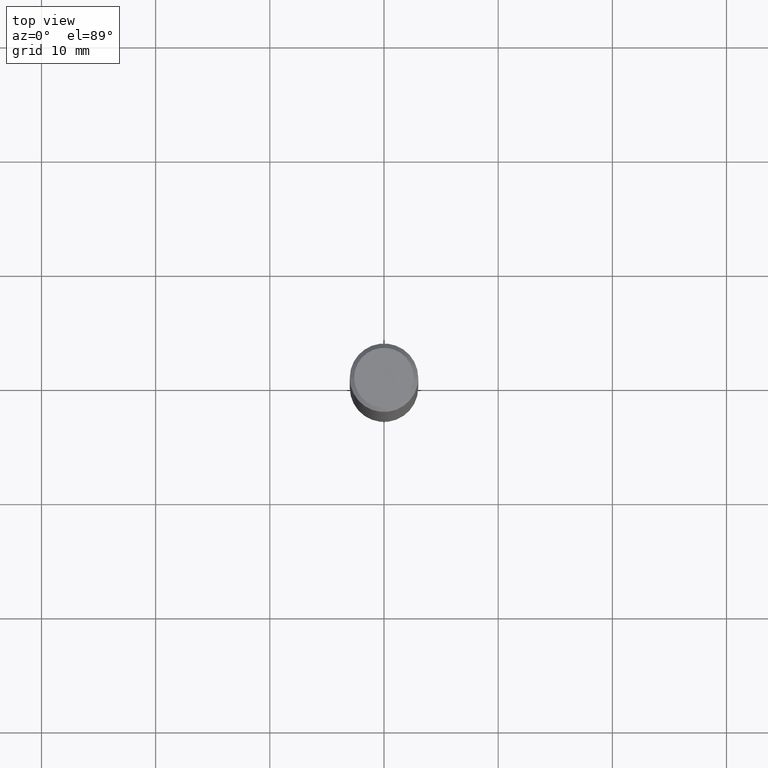
[diagram: clean part render]
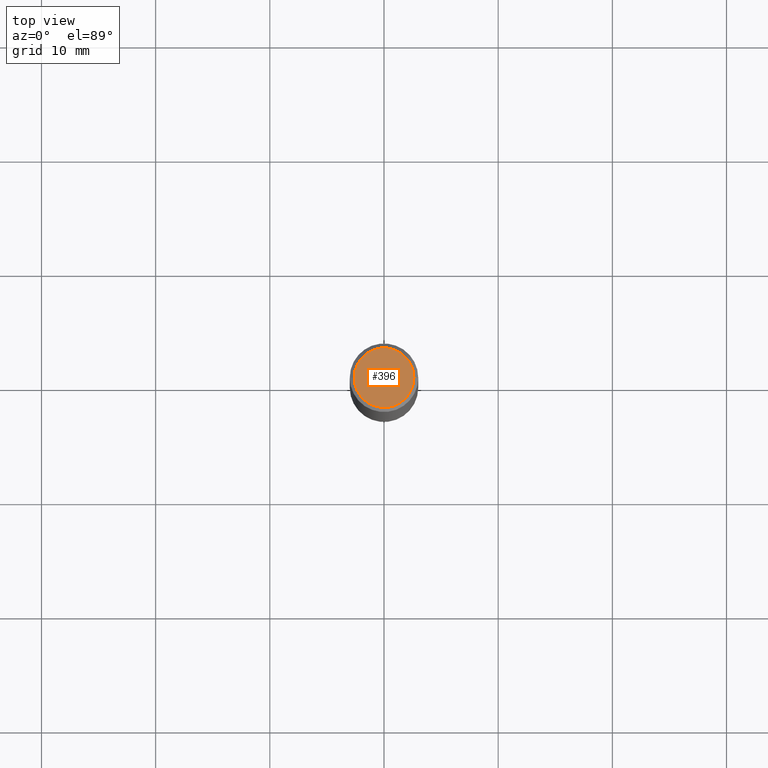
[diagram: same view with one face highlighted and labeled with its STEP entity id]
A machine part, top view. The second image highlights one B-rep face of the part: STEP entity #396.
In plain terms, the highlighted planar face has unit normal (0, -0, -1).
Its self-contained STEP definition (entity closure, byte-faithful):
#20 = DIRECTION ( 'NONE',  ( 1.000000000000000000, -6.982962677686265922E-15, 4.876176775795935232E-29 ) ) ;
#27 = AXIS2_PLACEMENT_3D ( 'NONE', #83, #406, #435 ) ;
#31 = ORIENTED_EDGE ( 'NONE', *, *, #115, .T. ) ;
#52 = CARTESIAN_POINT ( 'NONE',  ( 0.000000000000000000, 0.000000000000000000, 0.000000000000000000 ) ) ;
#83 = CARTESIAN_POINT ( 'NONE',  ( 7.199434520694541042E-16, 0.1031000000000000111, -3.599717260347282847E-16 ) ) ;
#96 = DIRECTION ( 'NONE',  ( -2.445468806185136597E-29, 3.491481338843145583E-15, 1.000000000000000000 ) ) ;
#107 = EDGE_LOOP ( 'NONE', ( #31, #195 ) ) ;
#115 = EDGE_CURVE ( 'NONE', #379, #472, #436, .T. ) ;
#185 = CIRCLE ( 'NONE', #471, 0.1031000000000000111 ) ;
#195 = ORIENTED_EDGE ( 'NONE', *, *, #308, .T. ) ;
#217 = DIRECTION ( 'NONE',  ( 1.000000000000000000, -6.982962677686265922E-15, 4.876176775795935232E-29 ) ) ;
#224 = AXIS2_PLACEMENT_3D ( 'NONE', #52, #96, #217 ) ;
#243 = PLANE ( 'NONE',  #27 ) ;
#245 = CARTESIAN_POINT ( 'NONE',  ( -0.1031000000000000111, 7.461295621107775452E-16, -5.126375781645864005E-30 ) ) ;
#273 = DIRECTION ( 'NONE',  ( -2.445468806185136597E-29, 3.491481338843145583E-15, 1.000000000000000000 ) ) ;
#279 = FACE_OUTER_BOUND ( 'NONE', #107, .T. ) ;
#308 = EDGE_CURVE ( 'NONE', #472, #379, #185, .T. ) ;
#324 = CARTESIAN_POINT ( 'NONE',  ( 0.1031000000000000111, -7.849571885948548761E-16, 5.261941714946591942E-30 ) ) ;
#379 = VERTEX_POINT ( 'NONE', #245 ) ;
#396 = ADVANCED_FACE ( 'NONE', ( #279 ), #243, .F. ) ;
#406 = DIRECTION ( 'NONE',  ( 2.438088387897960049E-29, -3.491481338843145188E-15, -1.000000000000000000 ) ) ;
#435 = DIRECTION ( 'NONE',  ( -1.000000000000000000, 6.982962677686265922E-15, -4.876176775795935793E-29 ) ) ;
#436 = CIRCLE ( 'NONE', #224, 0.1031000000000000111 ) ;
#471 = AXIS2_PLACEMENT_3D ( 'NONE', #473, #273, #20 ) ;
#472 = VERTEX_POINT ( 'NONE', #324 ) ;
#473 = CARTESIAN_POINT ( 'NONE',  ( 0.000000000000000000, 0.000000000000000000, 0.000000000000000000 ) ) ;